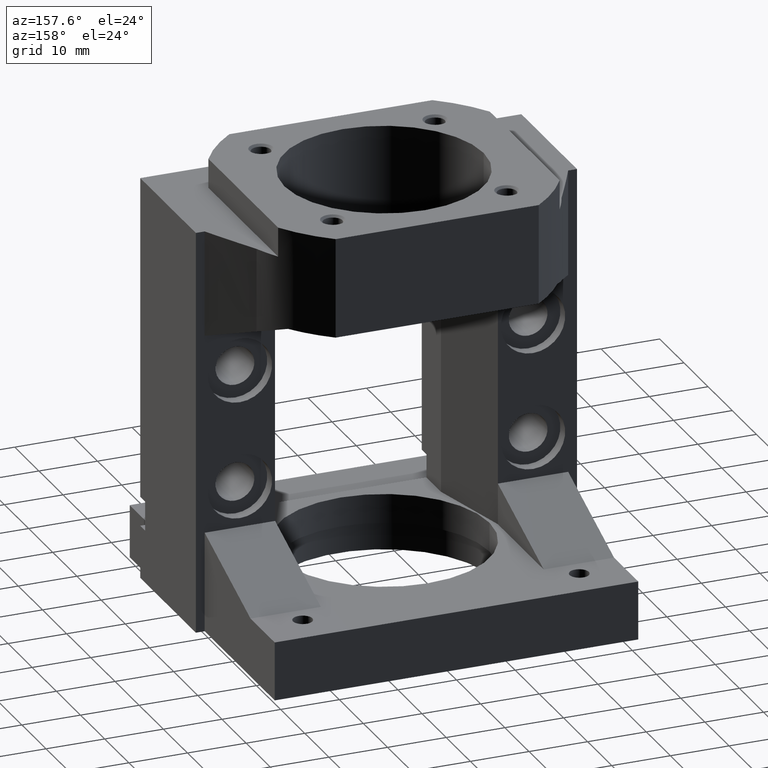
[diagram: clean part render]
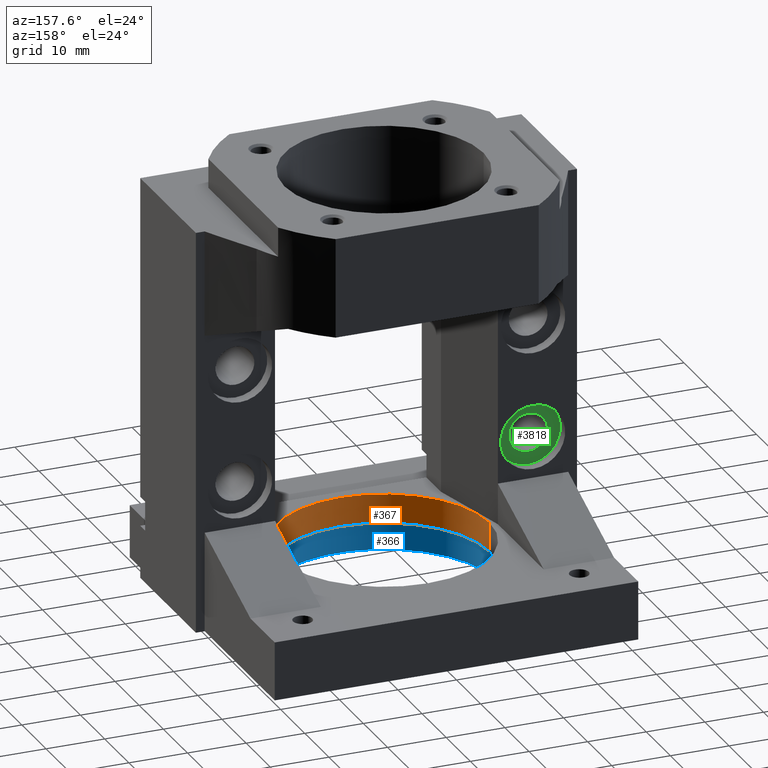
[diagram: same view with three faces highlighted in distinct colors, each labeled with its STEP entity id]
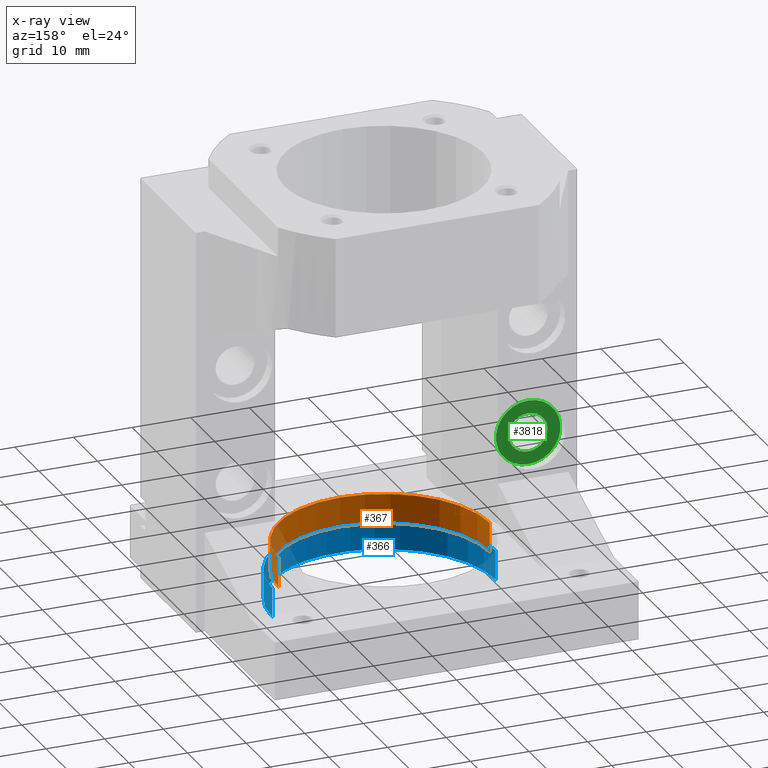
[diagram: x-ray of the same camera — body ghosted, the three highlighted faces saturated]
A machine part, auxiliary view with three faces highlighted in distinct colors.
The next image is the same camera in x-ray (body ghosted, the three faces saturated) — at least one of them is partly hidden behind the body in this view.
Their STEP definitions:

[orange] entity #367 — the highlighted cylindrical surface (partial cylindrical patch) has radius 18 mm, axis along (-0, -0, -1).
#367 = ADVANCED_FACE ( 'NONE', ( #3380 ), #3381, .F. ) ;
#429 = EDGE_CURVE ( 'NONE', #822, #821, #3424, .T. ) ;
#430 = EDGE_CURVE ( 'NONE', #673, #822, #3782, .T. ) ;
#431 = EDGE_CURVE ( 'NONE', #821, #842, #3779, .T. ) ;
#432 = EDGE_CURVE ( 'NONE', #673, #842, #3425, .T. ) ;
#673 = VERTEX_POINT ( 'NONE', #2663 ) ;
#821 = VERTEX_POINT ( 'NONE', #2491 ) ;
#822 = VERTEX_POINT ( 'NONE', #2490 ) ;
#842 = VERTEX_POINT ( 'NONE', #2468 ) ;
#1383 = ORIENTED_EDGE ( 'NONE', *, *, #432, .F. ) ;
#1384 = ORIENTED_EDGE ( 'NONE', *, *, #429, .T. ) ;
#1385 = ORIENTED_EDGE ( 'NONE', *, *, #431, .T. ) ;
#1386 = ORIENTED_EDGE ( 'NONE', *, *, #430, .T. ) ;
#1474 = EDGE_LOOP ( 'NONE', ( #1386, #1384, #1385, #1383 ) ) ;
#2468 = CARTESIAN_POINT ( 'NONE',  ( -18.00000000000000000, 0.0000000000000000000, 0.0000000000000000000 ) ) ;
#2490 = CARTESIAN_POINT ( 'NONE',  ( 18.00000000000000000, 2.204364238465235400E-015, 5.000000000000000000 ) ) ;
#2491 = CARTESIAN_POINT ( 'NONE',  ( 18.00000000000000000, 2.204364238465235400E-015, 0.0000000000000000000 ) ) ;
#2517 = DIRECTION ( 'NONE',  ( -1.000000000000000000, 0.0000000000000000000, 0.0000000000000000000 ) ) ;
#2518 = DIRECTION ( 'NONE',  ( -0.0000000000000000000, -0.0000000000000000000, -1.000000000000000000 ) ) ;
#2522 = CARTESIAN_POINT ( 'NONE',  ( 0.0000000000000000000, 0.0000000000000000000, 5.000000000000000000 ) ) ;
#2663 = CARTESIAN_POINT ( 'NONE',  ( -18.00000000000000000, 0.0000000000000000000, 5.000000000000000000 ) ) ;
#2918 = DIRECTION ( 'NONE',  ( -0.0000000000000000000, -0.0000000000000000000, -1.000000000000000000 ) ) ;
#2921 = CARTESIAN_POINT ( 'NONE',  ( -18.00000000000000000, 0.0000000000000000000, 5.000000000000000000 ) ) ;
#2923 = DIRECTION ( 'NONE',  ( -1.000000000000000000, 0.0000000000000000000, 0.0000000000000000000 ) ) ;
#2924 = DIRECTION ( 'NONE',  ( 0.0000000000000000000, 0.0000000000000000000, -1.000000000000000000 ) ) ;
#2925 = CARTESIAN_POINT ( 'NONE',  ( 0.0000000000000000000, 0.0000000000000000000, 0.0000000000000000000 ) ) ;
#2927 = DIRECTION ( 'NONE',  ( 1.000000000000000000, 0.0000000000000000000, 0.0000000000000000000 ) ) ;
#2928 = DIRECTION ( 'NONE',  ( 0.0000000000000000000, 0.0000000000000000000, 1.000000000000000000 ) ) ;
#2929 = CARTESIAN_POINT ( 'NONE',  ( 0.0000000000000000000, 0.0000000000000000000, 5.000000000000000000 ) ) ;
#2931 = DIRECTION ( 'NONE',  ( -0.0000000000000000000, -0.0000000000000000000, -1.000000000000000000 ) ) ;
#2932 = CARTESIAN_POINT ( 'NONE',  ( 18.00000000000000000, 2.204364238465235400E-015, 5.000000000000000000 ) ) ;
#3380 = FACE_OUTER_BOUND ( 'NONE', #1474, .T. ) ;
#3381 = CYLINDRICAL_SURFACE ( 'NONE', #3686, 18.00000000000000000 ) ;
#3424 = LINE ( 'NONE', #2932, #3783 ) ;
#3425 = LINE ( 'NONE', #2921, #3787 ) ;
#3686 = AXIS2_PLACEMENT_3D ( 'NONE', #2522, #2518, #2517 ) ;
#3779 = CIRCLE ( 'NONE', #3786, 18.00000000000000000 ) ;
#3782 = CIRCLE ( 'NONE', #3784, 18.00000000000000000 ) ;
#3783 = VECTOR ( 'NONE', #2931, 1000.000000000000000 ) ;
#3784 = AXIS2_PLACEMENT_3D ( 'NONE', #2929, #2928, #2927 ) ;
#3786 = AXIS2_PLACEMENT_3D ( 'NONE', #2925, #2924, #2923 ) ;
#3787 = VECTOR ( 'NONE', #2918, 1000.000000000000000 ) ;

[blue] entity #366 — the highlighted cylindrical surface (partial cylindrical patch) has radius 19.05 mm, axis along (-0, -0, -1).
#366 = ADVANCED_FACE ( 'NONE', ( #3378 ), #3379, .F. ) ;
#425 = EDGE_CURVE ( 'NONE', #713, #796, #3422, .T. ) ;
#426 = EDGE_CURVE ( 'NONE', #713, #710, #3776, .T. ) ;
#427 = EDGE_CURVE ( 'NONE', #796, #814, #3773, .T. ) ;
#428 = EDGE_CURVE ( 'NONE', #710, #814, #3423, .T. ) ;
#710 = VERTEX_POINT ( 'NONE', #2625 ) ;
#713 = VERTEX_POINT ( 'NONE', #2622 ) ;
#796 = VERTEX_POINT ( 'NONE', #2523 ) ;
#814 = VERTEX_POINT ( 'NONE', #2502 ) ;
#1387 = ORIENTED_EDGE ( 'NONE', *, *, #428, .F. ) ;
#1388 = ORIENTED_EDGE ( 'NONE', *, *, #425, .T. ) ;
#1389 = ORIENTED_EDGE ( 'NONE', *, *, #427, .T. ) ;
#1390 = ORIENTED_EDGE ( 'NONE', *, *, #426, .F. ) ;
#1473 = EDGE_LOOP ( 'NONE', ( #1390, #1388, #1389, #1387 ) ) ;
#2502 = CARTESIAN_POINT ( 'NONE',  ( -19.05000000000000100, 0.0000000000000000000, -5.000000000000000000 ) ) ;
#2523 = CARTESIAN_POINT ( 'NONE',  ( 19.05000000000000100, 2.332952152375708000E-015, -5.000000000000000000 ) ) ;
#2536 = DIRECTION ( 'NONE',  ( -1.000000000000000000, 0.0000000000000000000, 0.0000000000000000000 ) ) ;
#2542 = DIRECTION ( 'NONE',  ( -0.0000000000000000000, -0.0000000000000000000, -1.000000000000000000 ) ) ;
#2546 = CARTESIAN_POINT ( 'NONE',  ( 0.0000000000000000000, 0.0000000000000000000, 0.0000000000000000000 ) ) ;
#2622 = CARTESIAN_POINT ( 'NONE',  ( 19.05000000000000100, 2.332952152375708000E-015, 0.0000000000000000000 ) ) ;
#2625 = CARTESIAN_POINT ( 'NONE',  ( -19.05000000000000100, 0.0000000000000000000, 0.0000000000000000000 ) ) ;
#2933 = DIRECTION ( 'NONE',  ( -0.0000000000000000000, -0.0000000000000000000, -1.000000000000000000 ) ) ;
#2935 = CARTESIAN_POINT ( 'NONE',  ( -19.05000000000000100, 0.0000000000000000000, 0.0000000000000000000 ) ) ;
#2936 = DIRECTION ( 'NONE',  ( -1.000000000000000000, 0.0000000000000000000, 0.0000000000000000000 ) ) ;
#2937 = DIRECTION ( 'NONE',  ( 0.0000000000000000000, 0.0000000000000000000, -1.000000000000000000 ) ) ;
#2938 = CARTESIAN_POINT ( 'NONE',  ( 0.0000000000000000000, 0.0000000000000000000, -5.000000000000000000 ) ) ;
#2939 = DIRECTION ( 'NONE',  ( -1.000000000000000000, 0.0000000000000000000, 0.0000000000000000000 ) ) ;
#2940 = DIRECTION ( 'NONE',  ( 0.0000000000000000000, 0.0000000000000000000, -1.000000000000000000 ) ) ;
#2941 = CARTESIAN_POINT ( 'NONE',  ( 0.0000000000000000000, 0.0000000000000000000, 0.0000000000000000000 ) ) ;
#2943 = DIRECTION ( 'NONE',  ( -0.0000000000000000000, -0.0000000000000000000, -1.000000000000000000 ) ) ;
#2944 = CARTESIAN_POINT ( 'NONE',  ( 19.05000000000000100, 2.332952152375708000E-015, 0.0000000000000000000 ) ) ;
#3378 = FACE_OUTER_BOUND ( 'NONE', #1473, .T. ) ;
#3379 = CYLINDRICAL_SURFACE ( 'NONE', #3692, 19.05000000000000100 ) ;
#3422 = LINE ( 'NONE', #2944, #3777 ) ;
#3423 = LINE ( 'NONE', #2935, #3781 ) ;
#3692 = AXIS2_PLACEMENT_3D ( 'NONE', #2546, #2542, #2536 ) ;
#3773 = CIRCLE ( 'NONE', #3780, 19.05000000000000100 ) ;
#3776 = CIRCLE ( 'NONE', #3778, 19.05000000000000100 ) ;
#3777 = VECTOR ( 'NONE', #2943, 1000.000000000000000 ) ;
#3778 = AXIS2_PLACEMENT_3D ( 'NONE', #2941, #2940, #2939 ) ;
#3780 = AXIS2_PLACEMENT_3D ( 'NONE', #2938, #2937, #2936 ) ;
#3781 = VECTOR ( 'NONE', #2933, 1000.000000000000000 ) ;

[green] entity #3818 — the highlighted planar face has unit normal (0, -1, 0).
#338 = EDGE_CURVE ( 'NONE', #844, #820, #3650, .T. ) ;
#339 = EDGE_CURVE ( 'NONE', #741, #754, #3614, .T. ) ;
#407 = EDGE_CURVE ( 'NONE', #754, #741, #3734, .T. ) ;
#411 = EDGE_CURVE ( 'NONE', #820, #844, #3755, .T. ) ;
#601 = AXIS2_PLACEMENT_3D ( 'NONE', #2367, #2365, #2364 ) ;
#741 = VERTEX_POINT ( 'NONE', #2585 ) ;
#754 = VERTEX_POINT ( 'NONE', #2570 ) ;
#820 = VERTEX_POINT ( 'NONE', #2494 ) ;
#844 = VERTEX_POINT ( 'NONE', #2465 ) ;
#884 = ORIENTED_EDGE ( 'NONE', *, *, #407, .T. ) ;
#886 = ORIENTED_EDGE ( 'NONE', *, *, #339, .T. ) ;
#887 = ORIENTED_EDGE ( 'NONE', *, *, #411, .F. ) ;
#888 = ORIENTED_EDGE ( 'NONE', *, *, #338, .F. ) ;
#2175 = EDGE_LOOP ( 'NONE', ( #886, #884 ) ) ;
#2190 = EDGE_LOOP ( 'NONE', ( #888, #887 ) ) ;
#2364 = DIRECTION ( 'NONE',  ( 0.0000000000000000000, -0.0000000000000000000, -1.000000000000000000 ) ) ;
#2365 = DIRECTION ( 'NONE',  ( 0.0000000000000000000, -1.000000000000000000, 0.0000000000000000000 ) ) ;
#2367 = CARTESIAN_POINT ( 'NONE',  ( -21.69999999999999200, -1.000000000000014000, 19.00000000000000000 ) ) ;
#2368 = PLANE ( 'NONE',  #601 ) ;
#2465 = CARTESIAN_POINT ( 'NONE',  ( -24.99999999999999600, -1.000000000000014000, 22.30000000000000400 ) ) ;
#2494 = CARTESIAN_POINT ( 'NONE',  ( -24.99999999999999600, -1.000000000000014000, 15.69999999999999600 ) ) ;
#2570 = CARTESIAN_POINT ( 'NONE',  ( -24.99999999999999600, -1.000000000000014000, 13.49999999999999800 ) ) ;
#2585 = CARTESIAN_POINT ( 'NONE',  ( -24.99999999999999600, -1.000000000000014000, 24.50000000000000000 ) ) ;
#2901 = DIRECTION ( 'NONE',  ( 0.0000000000000000000, 0.0000000000000000000, 1.000000000000000000 ) ) ;
#2905 = DIRECTION ( 'NONE',  ( -0.0000000000000000000, 1.000000000000000000, -0.0000000000000000000 ) ) ;
#2908 = CARTESIAN_POINT ( 'NONE',  ( -24.99999999999999600, -1.000000000000014000, 19.00000000000000000 ) ) ;
#2919 = DIRECTION ( 'NONE',  ( 0.0000000000000000000, 0.0000000000000000000, 1.000000000000000000 ) ) ;
#2920 = DIRECTION ( 'NONE',  ( -0.0000000000000000000, 1.000000000000000000, -0.0000000000000000000 ) ) ;
#2922 = CARTESIAN_POINT ( 'NONE',  ( -24.99999999999999600, -1.000000000000014000, 19.00000000000000000 ) ) ;
#2987 = DIRECTION ( 'NONE',  ( 0.0000000000000000000, 0.0000000000000000000, 1.000000000000000000 ) ) ;
#2988 = DIRECTION ( 'NONE',  ( -0.0000000000000000000, 1.000000000000000000, -0.0000000000000000000 ) ) ;
#2989 = CARTESIAN_POINT ( 'NONE',  ( -24.99999999999999600, -1.000000000000014000, 19.00000000000000000 ) ) ;
#3000 = DIRECTION ( 'NONE',  ( 0.0000000000000000000, 0.0000000000000000000, 1.000000000000000000 ) ) ;
#3001 = DIRECTION ( 'NONE',  ( -0.0000000000000000000, 1.000000000000000000, -0.0000000000000000000 ) ) ;
#3003 = CARTESIAN_POINT ( 'NONE',  ( -24.99999999999999600, -1.000000000000014000, 19.00000000000000000 ) ) ;
#3521 = FACE_BOUND ( 'NONE', #2190, .T. ) ;
#3522 = FACE_OUTER_BOUND ( 'NONE', #2175, .T. ) ;
#3614 = CIRCLE ( 'NONE', #3655, 5.500000000000001800 ) ;
#3650 = CIRCLE ( 'NONE', #3653, 3.300000000000004300 ) ;
#3653 = AXIS2_PLACEMENT_3D ( 'NONE', #2922, #2920, #2919 ) ;
#3655 = AXIS2_PLACEMENT_3D ( 'NONE', #2908, #2905, #2901 ) ;
#3734 = CIRCLE ( 'NONE', #3751, 5.500000000000001800 ) ;
#3751 = AXIS2_PLACEMENT_3D ( 'NONE', #3003, #3001, #3000 ) ;
#3755 = CIRCLE ( 'NONE', #3756, 3.300000000000004300 ) ;
#3756 = AXIS2_PLACEMENT_3D ( 'NONE', #2989, #2988, #2987 ) ;
#3818 = ADVANCED_FACE ( 'NONE', ( #3521, #3522 ), #2368, .F. ) ;